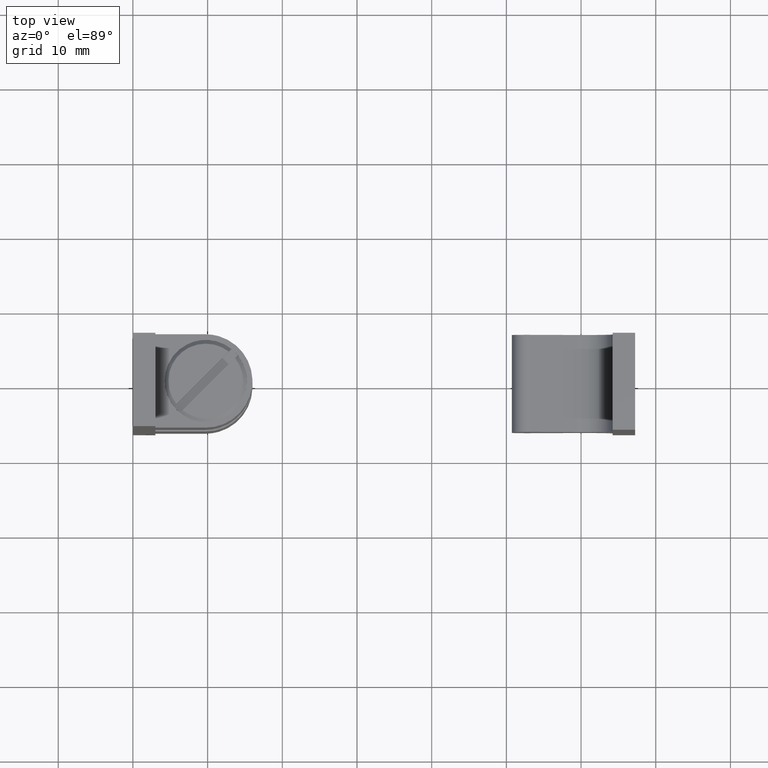
[diagram: clean part render]
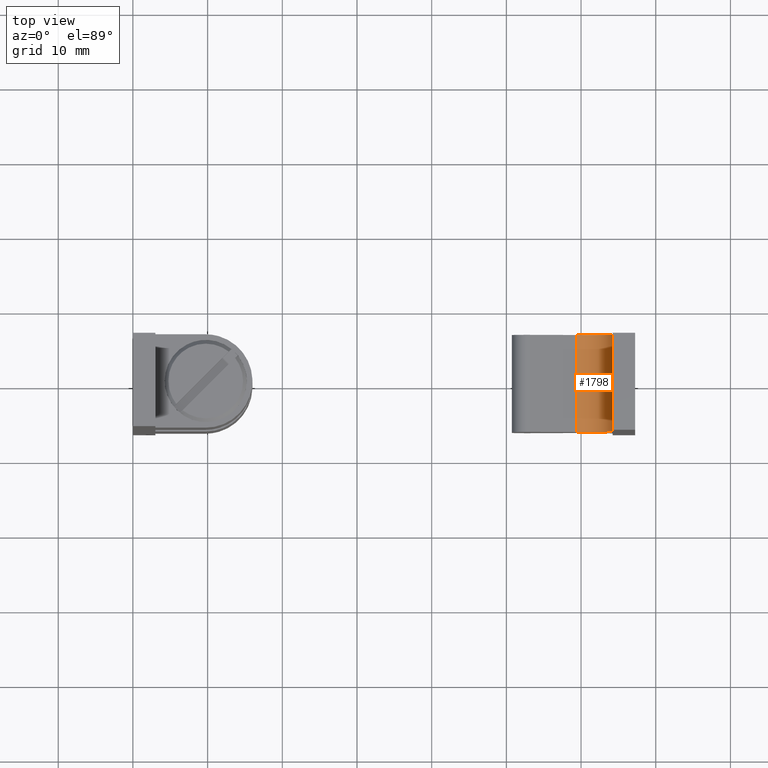
[diagram: same view with one face highlighted and labeled with its STEP entity id]
A machine part, top view. The second image highlights one B-rep face of the part: STEP entity #1798.
In plain terms, the highlighted face is a freeform B-spline surface patch.
Its self-contained STEP definition (entity closure, byte-faithful):
#1511=CARTESIAN_POINT('',(59.377891871657702,6.500000000000000,3.592600000000000));
#1512=VERTEX_POINT('',#1511);
#1520=CARTESIAN_POINT('',(64.233891871657590,6.500000000000000,7.500481313681910));
#1521=VERTEX_POINT('',#1520);
#1522=CARTESIAN_POINT('',(59.377891871657710,6.500000000000000,3.592600000000025));
#1523=CARTESIAN_POINT('',(61.249166509828996,6.500000000000001,3.182918174358250));
#1524=CARTESIAN_POINT('',(62.741529205220608,6.500000000000000,4.383901752567256));
#1525=CARTESIAN_POINT('',(64.233891900612235,6.500000000000001,5.584885330776261));
#1526=CARTESIAN_POINT('',(64.233891871657590,6.500000000000000,7.500481313681910));
#1534=(BOUNDED_CURVE()B_SPLINE_CURVE(2,(#1522,#1523,#1524,#1525,#1526),.UNSPECIFIED.,.F.,.U.)B_SPLINE_CURVE_WITH_KNOTS((3,2,3),(0.0,0.500000000000000,1.0),.UNSPECIFIED.)CURVE()GEOMETRIC_REPRESENTATION_ITEM()RATIONAL_B_SPLINE_CURVE((1.0,0.901928587326054,1.0,0.901928587326054,1.0))REPRESENTATION_ITEM(''));
#1535=EDGE_CURVE('',#1512,#1521,#1534,.T.);
#1643=CARTESIAN_POINT('',(59.377891871657702,-6.500000000000000,3.592600000000000));
#1644=VERTEX_POINT('',#1643);
#1745=CARTESIAN_POINT('',(64.233891871657590,-6.500000000000000,7.500481313681910));
#1746=VERTEX_POINT('',#1745);
#1752=CARTESIAN_POINT('',(59.377891871657710,-6.500000000000000,3.592600000000025));
#1753=CARTESIAN_POINT('',(61.249166509828996,-6.500000000000001,3.182918174358250));
#1754=CARTESIAN_POINT('',(62.741529205220608,-6.500000000000000,4.383901752567256));
#1755=CARTESIAN_POINT('',(64.233891900612235,-6.500000000000001,5.584885330776261));
#1756=CARTESIAN_POINT('',(64.233891871657590,-6.500000000000000,7.500481313681910));
#1764=(BOUNDED_CURVE()B_SPLINE_CURVE(2,(#1752,#1753,#1754,#1755,#1756),.UNSPECIFIED.,.F.,.U.)B_SPLINE_CURVE_WITH_KNOTS((3,2,3),(0.0,0.500000000000000,1.0),.UNSPECIFIED.)CURVE()GEOMETRIC_REPRESENTATION_ITEM()RATIONAL_B_SPLINE_CURVE((1.0,0.901928587326054,1.0,0.901928587326054,1.0))REPRESENTATION_ITEM(''));
#1765=EDGE_CURVE('',#1644,#1746,#1764,.T.);
#1770=CARTESIAN_POINT('',(59.231821829025378,-6.825000000000001,3.627464853797842));
#1771=CARTESIAN_POINT('',(59.231821829025378,6.833125000000001,3.627464853797842));
#1772=CARTESIAN_POINT('',(64.653577478241431,-6.825000000000002,2.225303504829683));
#1773=CARTESIAN_POINT('',(64.653577478241431,6.833124999999999,2.225303504829683));
#1774=CARTESIAN_POINT('',(64.221994387665887,-6.825000000000001,7.808781525228421));
#1775=CARTESIAN_POINT('',(64.221994387665887,6.833125000000002,7.808781525228421));
#1783=(BOUNDED_SURFACE()B_SPLINE_SURFACE(1,2,((#1770,#1772,#1774),(#1771,#1773,#1775)),.UNSPECIFIED.,.F.,.F.,.U.)B_SPLINE_SURFACE_WITH_KNOTS((2,2),(3,3),(0.0,13.658125000000000),(0.0,8.234378927872530),.UNSPECIFIED.)GEOMETRIC_REPRESENTATION_ITEM()RATIONAL_B_SPLINE_SURFACE(((1.0,0.581062512704800,0.999281502669295),(1.0,0.581062512704800,0.999281502669295)))REPRESENTATION_ITEM('')SURFACE());
#1784=ORIENTED_EDGE('',*,*,#1535,.F.);
#1785=CARTESIAN_POINT('',(59.377891871657702,-6.500000000000000,3.592600000000000));
#1786=CARTESIAN_POINT('',(59.377891871657702,6.500000000000000,3.592600000000000));
#1787=QUASI_UNIFORM_CURVE('',1,(#1785,#1786),.UNSPECIFIED.,.F.,.U.);
#1788=EDGE_CURVE('',#1644,#1512,#1787,.T.);
#1789=ORIENTED_EDGE('',*,*,#1788,.F.);
#1790=ORIENTED_EDGE('',*,*,#1765,.T.);
#1791=CARTESIAN_POINT('',(64.233891871657590,-6.500000000000000,7.500481313681910));
#1792=CARTESIAN_POINT('',(64.233891871657590,6.500000000000000,7.500481313681910));
#1793=QUASI_UNIFORM_CURVE('',1,(#1791,#1792),.UNSPECIFIED.,.F.,.U.);
#1794=EDGE_CURVE('',#1746,#1521,#1793,.T.);
#1795=ORIENTED_EDGE('',*,*,#1794,.T.);
#1796=EDGE_LOOP('',(#1784,#1789,#1790,#1795));
#1797=FACE_OUTER_BOUND('',#1796,.T.);
#1798=ADVANCED_FACE('',(#1797),#1783,.F.);